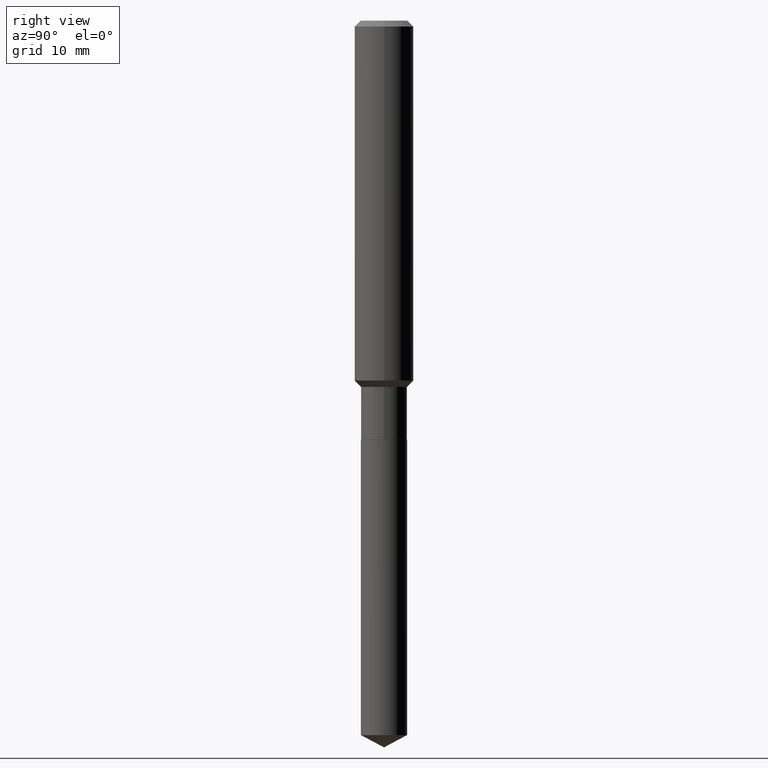
[diagram: clean part render]
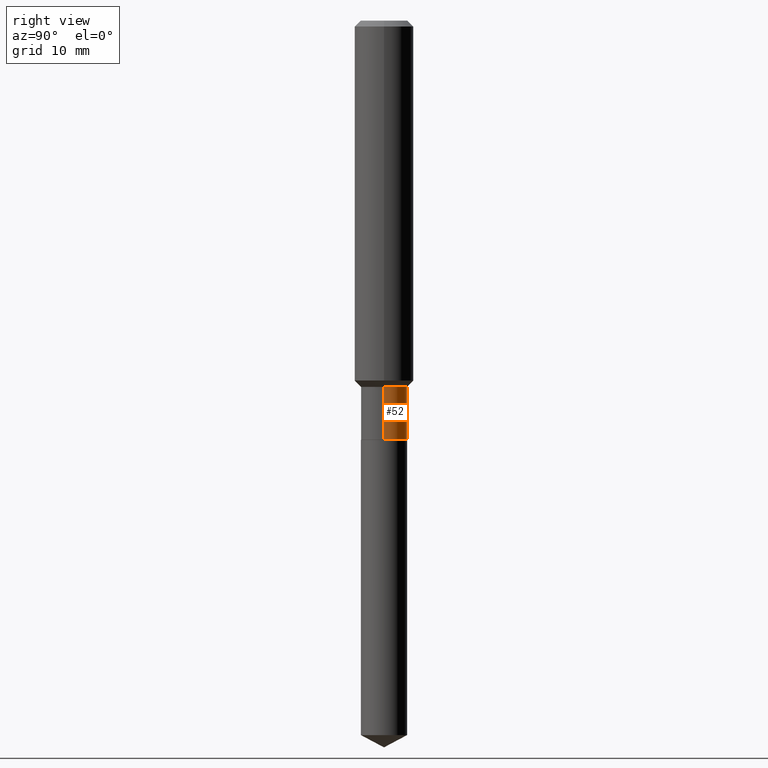
[diagram: same view with one face highlighted and labeled with its STEP entity id]
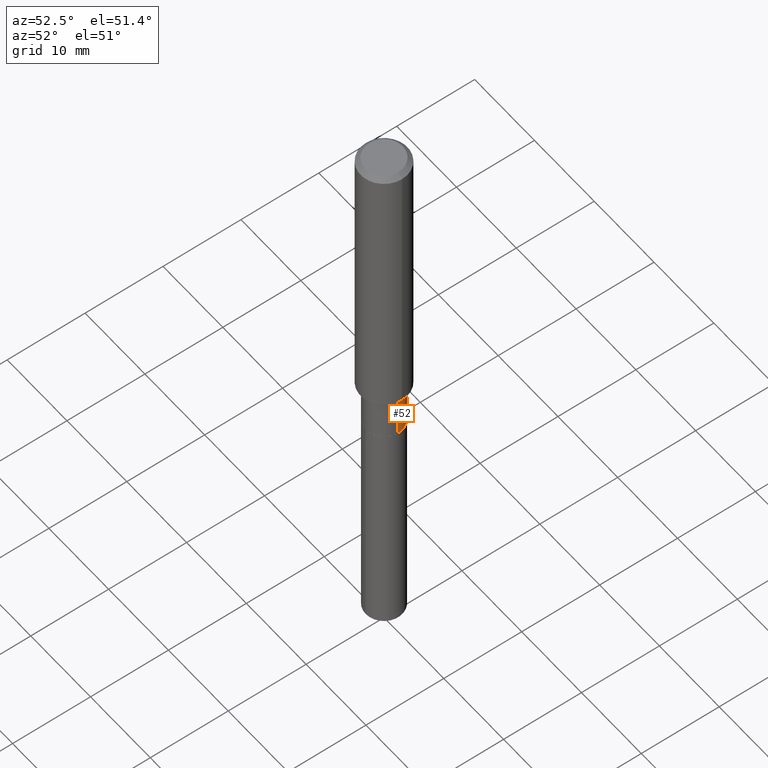
[diagram: same view with one face highlighted and labeled with its STEP entity id]
A machine part, right view. The second image highlights one B-rep face of the part: STEP entity #52.
A second angle (auxiliary view) of the same face is appended — the face is thin or edge-on in the first view.
In plain terms, the highlighted cylindrical surface (edge-blend (fillet) strip) has radius 2.3495 mm, axis along (-0, 0, 1).
Its self-contained STEP definition (entity closure, byte-faithful):
#11 = VECTOR ( 'NONE', #121, 39.37007874015748143 ) ;
#28 = CARTESIAN_POINT ( 'NONE',  ( -0.09249999999999999889, 6.572520305780926640E-16, -4.550014958485788170E-30 ) ) ;
#33 = EDGE_CURVE ( 'NONE', #267, #180, #456, .T. ) ;
#38 = EDGE_CURVE ( 'NONE', #267, #333, #163, .T. ) ;
#44 = CYLINDRICAL_SURFACE ( 'NONE', #330, 0.09249999999999999889 ) ;
#49 = DIRECTION ( 'NONE',  ( -2.445468806185136597E-29, 3.491481338843145583E-15, 1.000000000000000000 ) ) ;
#52 = ADVANCED_FACE ( 'NONE', ( #231 ), #44, .T. ) ;
#56 = LINE ( 'NONE', #28, #288 ) ;
#70 = VERTEX_POINT ( 'NONE', #236 ) ;
#78 = CARTESIAN_POINT ( 'NONE',  ( -0.09249999999999999889, -4.839910763363498635E-15, -1.680600000000000316 ) ) ;
#81 = ORIENTED_EDGE ( 'NONE', *, *, #209, .T. ) ;
#88 = CARTESIAN_POINT ( 'NONE',  ( 0.000000000000000000, 0.000000000000000000, 0.000000000000000000 ) ) ;
#100 = CARTESIAN_POINT ( 'NONE',  ( 0.09249999999999998501, -5.772466097509370892E-15, -1.468299999999999939 ) ) ;
#103 = CIRCLE ( 'NONE', #416, 0.09249999999999998501 ) ;
#116 = DIRECTION ( 'NONE',  ( 1.000000000000000000, -6.982962677686265133E-15, 0.000000000000000000 ) ) ;
#121 = DIRECTION ( 'NONE',  ( -2.445468806185136877E-29, 3.491481338843145188E-15, 1.000000000000000000 ) ) ;
#140 = CARTESIAN_POINT ( 'NONE',  ( 0.09249999999999999889, -6.513707585745771284E-15, -1.680600000000000316 ) ) ;
#141 = ORIENTED_EDGE ( 'NONE', *, *, #33, .F. ) ;
#163 = CIRCLE ( 'NONE', #379, 0.09249999999999999889 ) ;
#180 = VERTEX_POINT ( 'NONE', #100 ) ;
#196 = DIRECTION ( 'NONE',  ( 1.000000000000000000, -6.982962677686266711E-15, 4.876176775795935793E-29 ) ) ;
#206 = DIRECTION ( 'NONE',  ( -2.445468806185136877E-29, 3.491481338843145188E-15, 1.000000000000000000 ) ) ;
#209 = EDGE_CURVE ( 'NONE', #333, #70, #56, .T. ) ;
#220 = EDGE_LOOP ( 'NONE', ( #234, #81, #294, #141 ) ) ;
#231 = FACE_OUTER_BOUND ( 'NONE', #220, .T. ) ;
#234 = ORIENTED_EDGE ( 'NONE', *, *, #38, .T. ) ;
#236 = CARTESIAN_POINT ( 'NONE',  ( -0.09249999999999998501, -4.839910763363498635E-15, -1.468299999999999939 ) ) ;
#248 = CARTESIAN_POINT ( 'NONE',  ( 3.590681848121635967E-29, -5.126542049823390906E-15, -1.468299999999999939 ) ) ;
#267 = VERTEX_POINT ( 'NONE', #140 ) ;
#269 = CARTESIAN_POINT ( 'NONE',  ( 4.109854875674741495E-29, -5.867783538059791298E-15, -1.680600000000000316 ) ) ;
#288 = VECTOR ( 'NONE', #206, 39.37007874015748143 ) ;
#294 = ORIENTED_EDGE ( 'NONE', *, *, #374, .F. ) ;
#330 = AXIS2_PLACEMENT_3D ( 'NONE', #88, #381, #196 ) ;
#333 = VERTEX_POINT ( 'NONE', #78 ) ;
#374 = EDGE_CURVE ( 'NONE', #180, #70, #103, .T. ) ;
#379 = AXIS2_PLACEMENT_3D ( 'NONE', #269, #49, #116 ) ;
#381 = DIRECTION ( 'NONE',  ( -2.445468806185136597E-29, 3.491481338843145583E-15, 1.000000000000000000 ) ) ;
#404 = DIRECTION ( 'NONE',  ( 1.000000000000000000, -6.982962677686265922E-15, 0.000000000000000000 ) ) ;
#416 = AXIS2_PLACEMENT_3D ( 'NONE', #248, #478, #404 ) ;
#456 = LINE ( 'NONE', #461, #11 ) ;
#461 = CARTESIAN_POINT ( 'NONE',  ( 0.09249999999999999889, -6.459240476859796904E-16, 4.510463517611240749E-30 ) ) ;
#478 = DIRECTION ( 'NONE',  ( -2.445468806185136597E-29, 3.491481338843145583E-15, 1.000000000000000000 ) ) ;